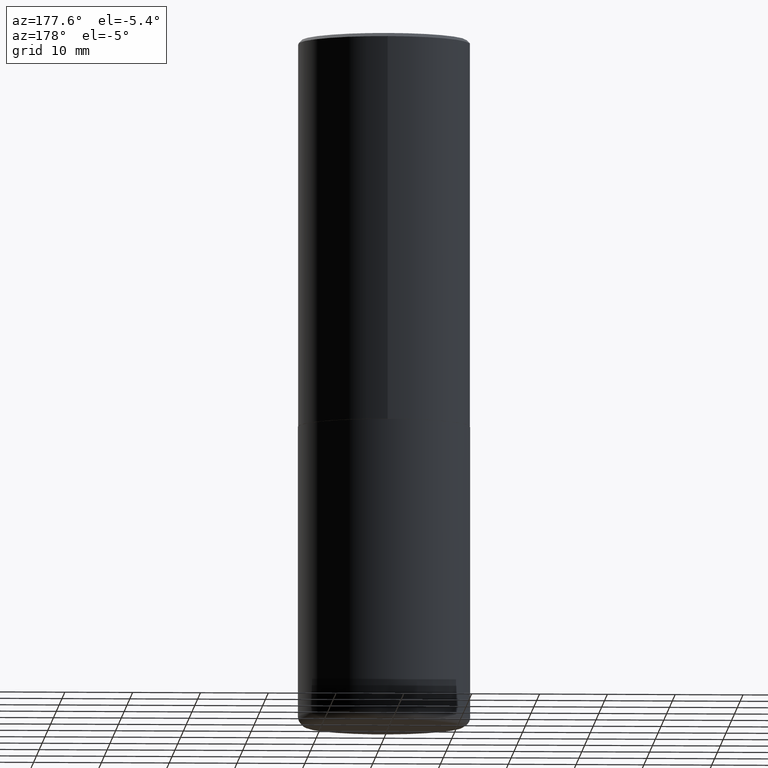
[diagram: clean part render]
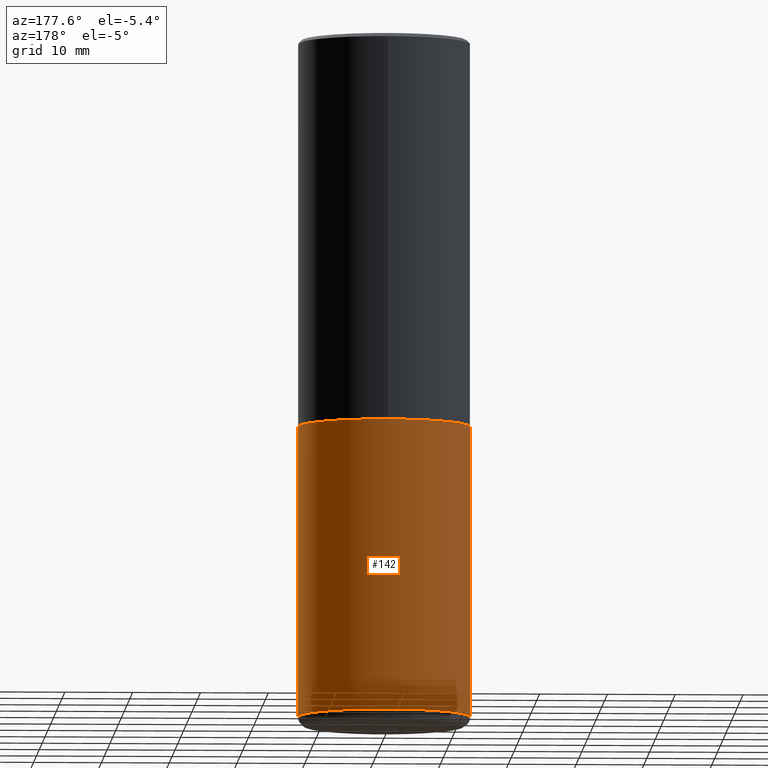
[diagram: same view with one face highlighted and labeled with its STEP entity id]
A machine part, auxiliary view. The second image highlights one B-rep face of the part: STEP entity #142.
In plain terms, the highlighted cylindrical surface (partial cylindrical patch) has radius 12.7 mm, axis along (-0, 0, 1).
Its self-contained STEP definition (entity closure, byte-faithful):
#5 = CARTESIAN_POINT ( 'NONE',  ( -0.5000000000000000000, 3.552713678800500929E-15, -2.459467545127452891E-29 ) ) ;
#19 = DIRECTION ( 'NONE',  ( -2.445468806185136877E-29, 3.491481338843145188E-15, 1.000000000000000000 ) ) ;
#32 = CARTESIAN_POINT ( 'NONE',  ( 5.502304813916557343E-29, -7.855833012397078448E-15, -2.250000000000000000 ) ) ;
#58 = VECTOR ( 'NONE', #330, 39.37007874015748143 ) ;
#67 = VERTEX_POINT ( 'NONE', #308 ) ;
#75 = LINE ( 'NONE', #5, #58 ) ;
#88 = CARTESIAN_POINT ( 'NONE',  ( 9.635147096369438236E-29, -1.375643647504199401E-14, -3.939999999999999947 ) ) ;
#101 = AXIS2_PLACEMENT_3D ( 'NONE', #32, #106, #295 ) ;
#106 = DIRECTION ( 'NONE',  ( -2.445468806185136597E-29, 3.491481338843145583E-15, 1.000000000000000000 ) ) ;
#114 = EDGE_CURVE ( 'NONE', #67, #132, #176, .T. ) ;
#119 = DIRECTION ( 'NONE',  ( -2.445468806185136597E-29, 3.491481338843145583E-15, 1.000000000000000000 ) ) ;
#121 = VERTEX_POINT ( 'NONE', #292 ) ;
#126 = CARTESIAN_POINT ( 'NONE',  ( -0.5000000000000000000, -7.253421064919035302E-15, -2.250000000000000000 ) ) ;
#132 = VERTEX_POINT ( 'NONE', #407 ) ;
#142 = ADVANCED_FACE ( 'NONE', ( #317 ), #319, .T. ) ;
#164 = VERTEX_POINT ( 'NONE', #126 ) ;
#173 = ORIENTED_EDGE ( 'NONE', *, *, #114, .F. ) ;
#176 = LINE ( 'NONE', #376, #324 ) ;
#181 = CARTESIAN_POINT ( 'NONE',  ( 0.000000000000000000, 0.000000000000000000, 0.000000000000000000 ) ) ;
#192 = AXIS2_PLACEMENT_3D ( 'NONE', #181, #321, #219 ) ;
#209 = EDGE_CURVE ( 'NONE', #121, #164, #75, .T. ) ;
#219 = DIRECTION ( 'NONE',  ( 1.000000000000000000, -6.982962677686266711E-15, 4.876176775795935793E-29 ) ) ;
#264 = DIRECTION ( 'NONE',  ( 1.000000000000000000, -6.982962677686266711E-15, 0.000000000000000000 ) ) ;
#270 = CIRCLE ( 'NONE', #101, 0.5000000000000000000 ) ;
#282 = EDGE_LOOP ( 'NONE', ( #294, #372, #364, #173 ) ) ;
#292 = CARTESIAN_POINT ( 'NONE',  ( -0.5000000000000000000, -1.020372279624149466E-14, -3.939999999999999947 ) ) ;
#294 = ORIENTED_EDGE ( 'NONE', *, *, #333, .T. ) ;
#295 = DIRECTION ( 'NONE',  ( 1.000000000000000000, -6.982962677686269077E-15, 0.000000000000000000 ) ) ;
#308 = CARTESIAN_POINT ( 'NONE',  ( 0.5000000000000000000, -1.724791781388512737E-14, -3.939999999999999947 ) ) ;
#317 = FACE_OUTER_BOUND ( 'NONE', #282, .T. ) ;
#319 = CYLINDRICAL_SURFACE ( 'NONE', #192, 0.5000000000000000000 ) ;
#321 = DIRECTION ( 'NONE',  ( -2.445468806185136597E-29, 3.491481338843145583E-15, 1.000000000000000000 ) ) ;
#322 = CIRCLE ( 'NONE', #411, 0.5000000000000000000 ) ;
#324 = VECTOR ( 'NONE', #19, 39.37007874015748143 ) ;
#330 = DIRECTION ( 'NONE',  ( -2.445468806185136877E-29, 3.491481338843145188E-15, 1.000000000000000000 ) ) ;
#333 = EDGE_CURVE ( 'NONE', #67, #121, #322, .T. ) ;
#351 = EDGE_CURVE ( 'NONE', #132, #164, #270, .T. ) ;
#364 = ORIENTED_EDGE ( 'NONE', *, *, #351, .F. ) ;
#372 = ORIENTED_EDGE ( 'NONE', *, *, #209, .T. ) ;
#376 = CARTESIAN_POINT ( 'NONE',  ( 0.5000000000000000000, -3.491481338843133355E-15, 2.438088387897967896E-29 ) ) ;
#407 = CARTESIAN_POINT ( 'NONE',  ( 0.5000000000000000000, -1.134731435124021180E-14, -2.250000000000000000 ) ) ;
#411 = AXIS2_PLACEMENT_3D ( 'NONE', #88, #119, #264 ) ;